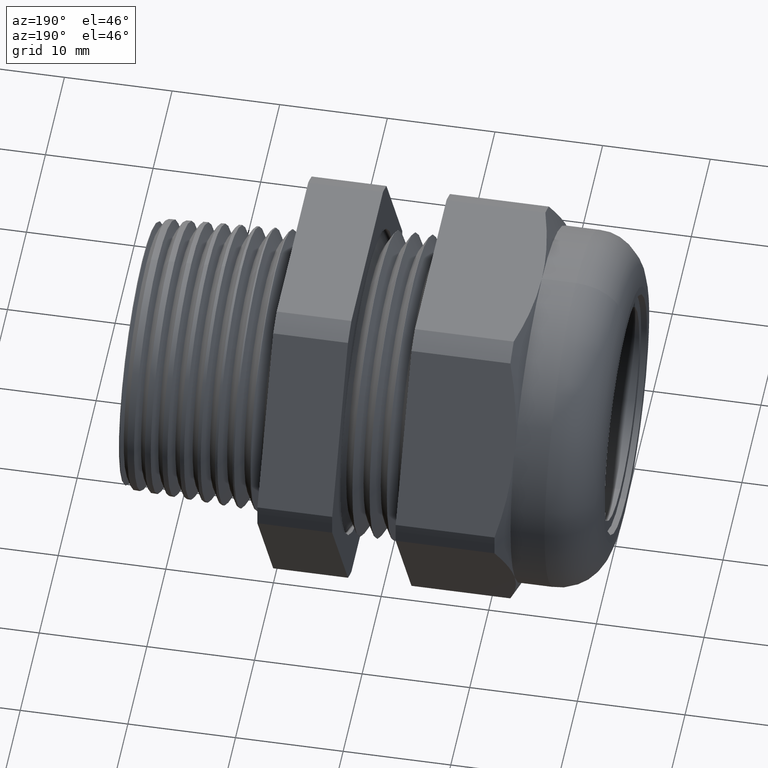
[diagram: clean part render]
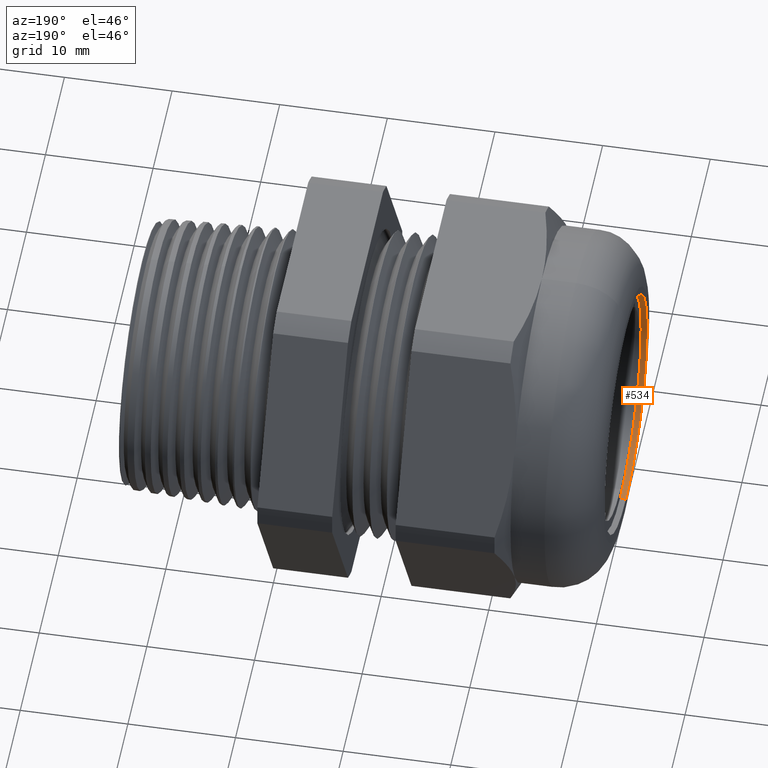
[diagram: same view with one face highlighted and labeled with its STEP entity id]
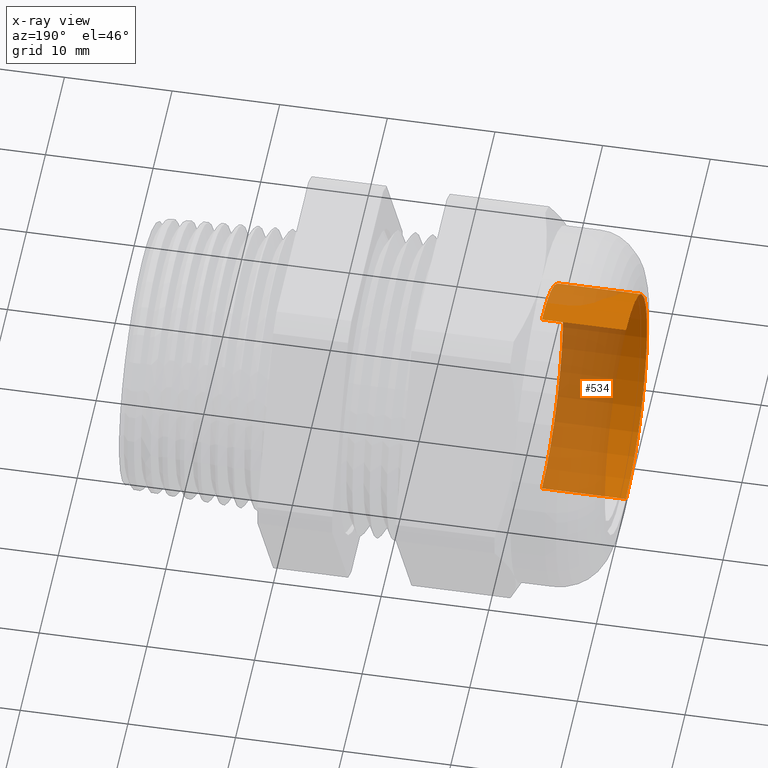
[diagram: x-ray of the same camera — body ghosted, the highlighted face saturated]
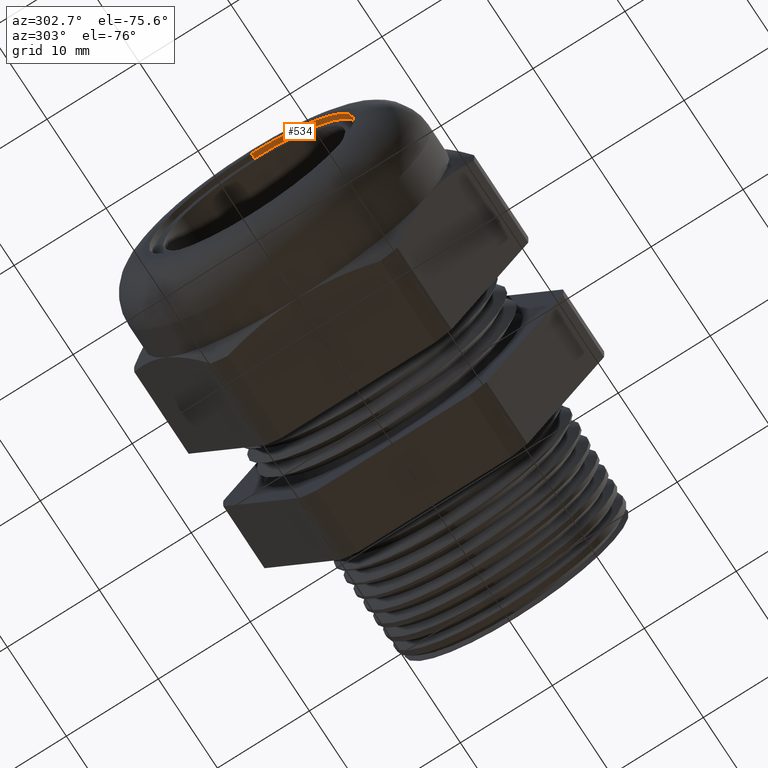
[diagram: same view with one face highlighted and labeled with its STEP entity id]
A machine part, auxiliary view. The second image highlights one B-rep face of the part: STEP entity #534.
The next image is the same camera in x-ray: the body ghosted, the highlighted face saturated — about 60% of this face is hidden behind the body in this view.
A second angle (auxiliary view) of the same face is appended — the face is thin or edge-on in the first view.
In plain terms, the highlighted cylindrical surface (partial cylindrical patch) has radius 11.1188 mm, axis along (-1, 0, 0).
Its self-contained STEP definition (entity closure, byte-faithful):
#453 = EDGE_LOOP ( 'NONE', ( #454, #511, #514, #517 ) ) ;
#454 = ORIENTED_EDGE ( 'NONE', *, *, #509, .F. ) ;
#455 = VERTEX_POINT ( 'NONE', #2237 ) ;
#509 = EDGE_CURVE ( 'NONE', #455, #510, #2331, .T. ) ;
#510 = VERTEX_POINT ( 'NONE', #2326 ) ;
#511 = ORIENTED_EDGE ( 'NONE', *, *, #512, .T. ) ;
#512 = EDGE_CURVE ( 'NONE', #455, #513, #2325, .T. ) ;
#513 = VERTEX_POINT ( 'NONE', #2321 ) ;
#514 = ORIENTED_EDGE ( 'NONE', *, *, #515, .T. ) ;
#515 = EDGE_CURVE ( 'NONE', #513, #516, #2320, .T. ) ;
#516 = VERTEX_POINT ( 'NONE', #2315 ) ;
#517 = ORIENTED_EDGE ( 'NONE', *, *, #518, .F. ) ;
#518 = EDGE_CURVE ( 'NONE', #510, #516, #2314, .T. ) ;
#534 = ADVANCED_FACE ( 'NONE', ( #2340 ), #2338, .F. ) ;
#2237 = CARTESIAN_POINT ( 'NONE',  ( -0.9124999999999999800, 5.360891363267538200E-017, -0.4377499999999999700 ) ) ;
#2311 = DIRECTION ( 'NONE',  ( -1.000000000000000000, 0.0000000000000000000, 0.0000000000000000000 ) ) ;
#2312 = VECTOR ( 'NONE', #2311, 39.37007874015748100 ) ;
#2313 = CARTESIAN_POINT ( 'NONE',  ( -0.7238591030180623300, 0.0000000000000000000, 0.4377499999999999700 ) ) ;
#2314 = LINE ( 'NONE', #2313, #2312 ) ;
#2315 = CARTESIAN_POINT ( 'NONE',  ( -1.219999999999999800, 0.0000000000000000000, 0.4377499999999999700 ) ) ;
#2316 = DIRECTION ( 'NONE',  ( 0.0000000000000000000, 0.0000000000000000000, 1.000000000000000000 ) ) ;
#2317 = DIRECTION ( 'NONE',  ( -1.000000000000000000, 0.0000000000000000000, 0.0000000000000000000 ) ) ;
#2318 = CARTESIAN_POINT ( 'NONE',  ( -1.219999999999999800, 0.0000000000000000000, 0.0000000000000000000 ) ) ;
#2319 = AXIS2_PLACEMENT_3D ( 'NONE', #2318, #2317, #2316 ) ;
#2320 = CIRCLE ( 'NONE', #2319, 0.4377499999999999700 ) ;
#2321 = CARTESIAN_POINT ( 'NONE',  ( -1.219999999999999800, 5.360891363267538200E-017, -0.4377499999999999700 ) ) ;
#2322 = DIRECTION ( 'NONE',  ( -1.000000000000000000, 0.0000000000000000000, 0.0000000000000000000 ) ) ;
#2323 = VECTOR ( 'NONE', #2322, 39.37007874015748100 ) ;
#2324 = CARTESIAN_POINT ( 'NONE',  ( -0.7238591030180623300, 5.360891363267538200E-017, -0.4377499999999999700 ) ) ;
#2325 = LINE ( 'NONE', #2324, #2323 ) ;
#2326 = CARTESIAN_POINT ( 'NONE',  ( -0.9124999999999999800, 0.0000000000000000000, 0.4377499999999999700 ) ) ;
#2327 = DIRECTION ( 'NONE',  ( 0.0000000000000000000, 0.0000000000000000000, 1.000000000000000000 ) ) ;
#2328 = DIRECTION ( 'NONE',  ( -1.000000000000000000, 0.0000000000000000000, 0.0000000000000000000 ) ) ;
#2329 = CARTESIAN_POINT ( 'NONE',  ( -0.9124999999999999800, 0.0000000000000000000, 0.0000000000000000000 ) ) ;
#2330 = AXIS2_PLACEMENT_3D ( 'NONE', #2329, #2328, #2327 ) ;
#2331 = CIRCLE ( 'NONE', #2330, 0.4377499999999999700 ) ;
#2336 = CARTESIAN_POINT ( 'NONE',  ( -0.7238591030180623300, 0.0000000000000000000, 0.0000000000000000000 ) ) ;
#2337 = AXIS2_PLACEMENT_3D ( 'NONE', #2336, #2396, #2395 ) ;
#2338 = CYLINDRICAL_SURFACE ( 'NONE', #2337, 0.4377499999999999700 ) ;
#2340 = FACE_OUTER_BOUND ( 'NONE', #453, .T. ) ;
#2395 = DIRECTION ( 'NONE',  ( 0.0000000000000000000, 0.0000000000000000000, 1.000000000000000000 ) ) ;
#2396 = DIRECTION ( 'NONE',  ( -1.000000000000000000, 0.0000000000000000000, 0.0000000000000000000 ) ) ;